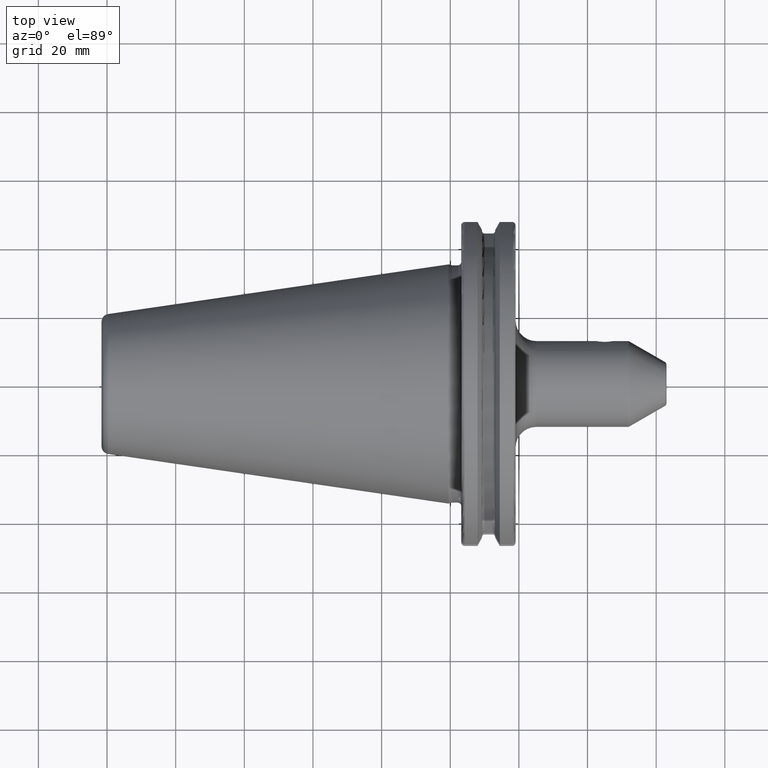
[diagram: clean part render]
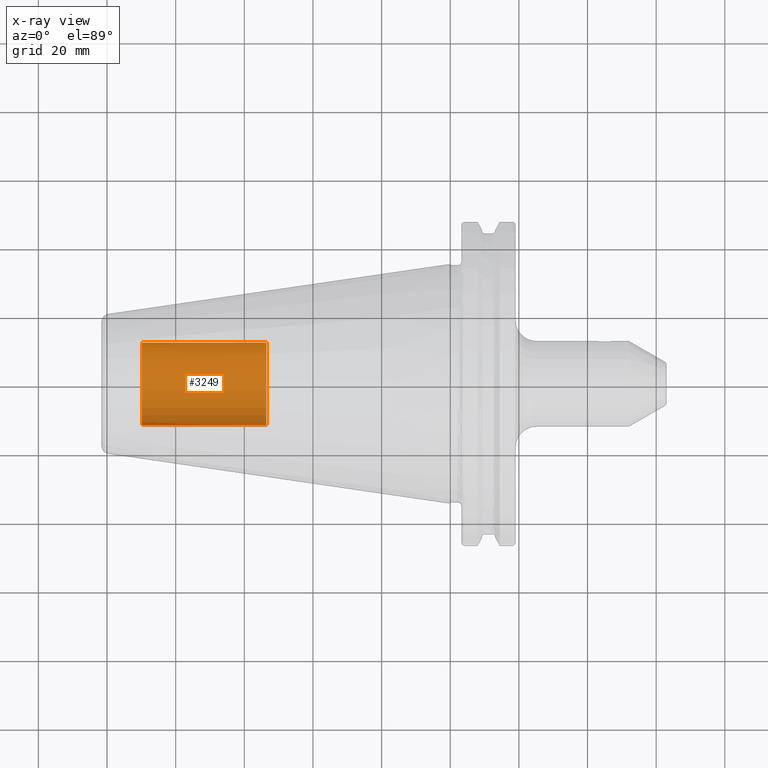
[diagram: x-ray — body ghosted, one internal face saturated and labeled with its STEP entity id]
A machine part, top view, then the same camera in x-ray: the body is ghosted and one INTERNAL B-rep face — a face not visible from any outside direction — is saturated and labeled: STEP entity #3249.
In plain terms, the highlighted cylindrical surface (partial cylindrical patch) has radius 12.0032 mm, axis along (1, 0, 0).
Its self-contained STEP definition (entity closure, byte-faithful):
#3184=CARTESIAN_POINT('',(-8.985E1,0.E0,0.E0));
#3185=DIRECTION('',(-1.E0,0.E0,0.E0));
#3186=DIRECTION('',(0.E0,1.E0,0.E0));
#3187=AXIS2_PLACEMENT_3D('',#3184,#3185,#3186);
#3189=DIRECTION('',(1.E0,0.E0,0.E0));
#3190=VECTOR('',#3189,3.625E1);
#3191=CARTESIAN_POINT('',(-8.985E1,-1.200325E1,0.E0));
#3192=LINE('',#3191,#3190);
#3198=DIRECTION('',(1.E0,0.E0,0.E0));
#3199=VECTOR('',#3198,3.625E1);
#3200=CARTESIAN_POINT('',(-8.985E1,1.200325E1,0.E0));
#3201=LINE('',#3200,#3199);
#3207=CARTESIAN_POINT('',(-5.36E1,0.E0,0.E0));
#3208=DIRECTION('',(1.E0,0.E0,0.E0));
#3209=DIRECTION('',(0.E0,-1.E0,0.E0));
#3210=AXIS2_PLACEMENT_3D('',#3207,#3208,#3209);
#3222=CARTESIAN_POINT('',(-8.985E1,1.200325E1,0.E0));
#3223=CARTESIAN_POINT('',(-8.985E1,-1.200325E1,0.E0));
#3224=VERTEX_POINT('',#3222);
#3225=VERTEX_POINT('',#3223);
#3226=CARTESIAN_POINT('',(-5.36E1,1.200325E1,0.E0));
#3227=CARTESIAN_POINT('',(-5.36E1,-1.200325E1,0.E0));
#3228=VERTEX_POINT('',#3226);
#3229=VERTEX_POINT('',#3227);
#3234=CARTESIAN_POINT('',(-8.985E1,0.E0,0.E0));
#3235=DIRECTION('',(1.E0,0.E0,0.E0));
#3236=DIRECTION('',(0.E0,1.E0,0.E0));
#3237=AXIS2_PLACEMENT_3D('',#3234,#3235,#3236);
#3238=CYLINDRICAL_SURFACE('',#3237,1.200325E1);
#3240=ORIENTED_EDGE('',*,*,#3239,.T.);
#3242=ORIENTED_EDGE('',*,*,#3241,.T.);
#3244=ORIENTED_EDGE('',*,*,#3243,.T.);
#3246=ORIENTED_EDGE('',*,*,#3245,.F.);
#3247=EDGE_LOOP('',(#3240,#3242,#3244,#3246));
#3248=FACE_OUTER_BOUND('',#3247,.F.);
#3249=ADVANCED_FACE('',(#3248),#3238,.T.);
#3188=CIRCLE('',#3187,1.200325E1);
#3211=CIRCLE('',#3210,1.200325E1);
#3239=EDGE_CURVE('',#3224,#3225,#3188,.T.);
#3241=EDGE_CURVE('',#3225,#3229,#3192,.T.);
#3243=EDGE_CURVE('',#3229,#3228,#3211,.T.);
#3245=EDGE_CURVE('',#3224,#3228,#3201,.T.);